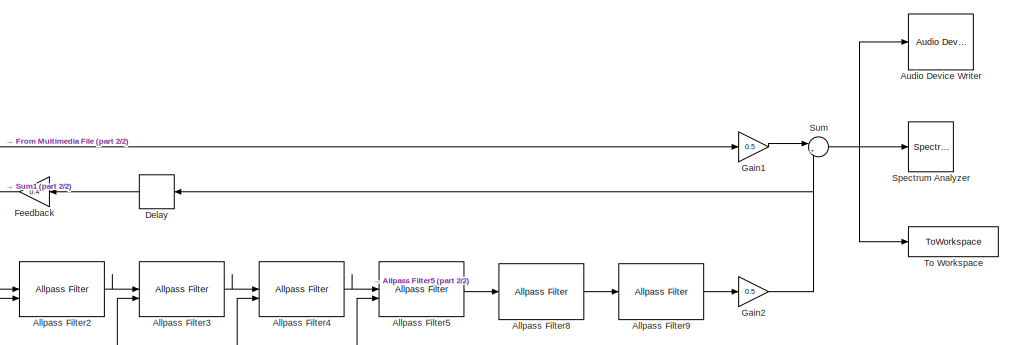
[diagram: root canvas - part 1/2, top right region]
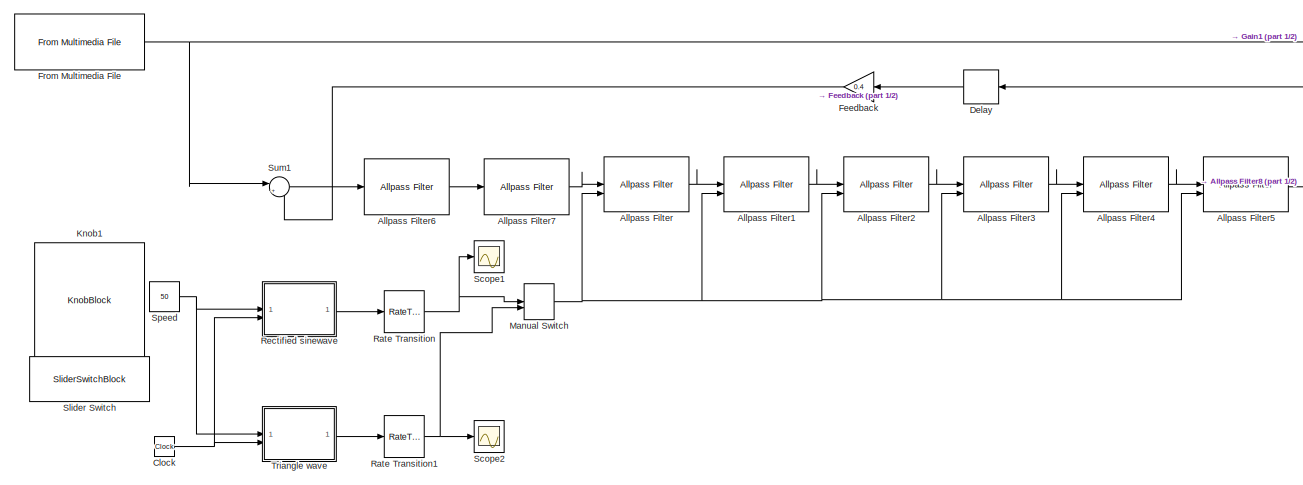
[diagram: root canvas - part 2/2, center side, full height]
MODEL slx_982d19d7233f
KIND model
CONFIG AbsTol = auto
CONFIG EnableMultiTasking = off
CONFIG FixedStep = auto
CONFIG MaxStep = auto
CONFIG MinStep = auto
CONFIG RelTol = 1e-3
CONFIG SampleTimeConstraint = Unconstrained
CONFIG SolverName = VariableStepAuto
CONFIG StartTime = 0.0
CONFIG StopTime = 10.0
BLOCK [Reference] Allpass Filter  REF=dsparch4/Allpass Filter
  SourceBlock = dsparch4/Allpass Filter
  SourceType = dsp.simulink.AllpassFilter
BLOCK [Reference] Allpass Filter1  REF=dsparch4/Allpass Filter
  SourceBlock = dsparch4/Allpass Filter
  SourceType = dsp.simulink.AllpassFilter
BLOCK [Reference] Allpass Filter2  REF=dsparch4/Allpass Filter
  SourceBlock = dsparch4/Allpass Filter
  SourceType = dsp.simulink.AllpassFilter
BLOCK [Reference] Allpass Filter3  REF=dsparch4/Allpass Filter
  SourceBlock = dsparch4/Allpass Filter
  SourceType = dsp.simulink.AllpassFilter
BLOCK [Reference] Allpass Filter4  REF=dsparch4/Allpass Filter
  SourceBlock = dsparch4/Allpass Filter
  SourceType = dsp.simulink.AllpassFilter
BLOCK [Reference] Allpass Filter5  REF=dsparch4/Allpass Filter
  SourceBlock = dsparch4/Allpass Filter
  SourceType = dsp.simulink.AllpassFilter
BLOCK [Reference] Allpass Filter6  REF=dsparch4/Allpass Filter
  SourceBlock = dsparch4/Allpass Filter
  SourceType = dsp.simulink.AllpassFilter
BLOCK [Reference] Allpass Filter7  REF=dsparch4/Allpass Filter
  SourceBlock = dsparch4/Allpass Filter
  SourceType = dsp.simulink.AllpassFilter
BLOCK [Reference] Allpass Filter8  REF=dsparch4/Allpass Filter
  SourceBlock = dsparch4/Allpass Filter
  SourceType = dsp.simulink.AllpassFilter
BLOCK [Reference] Allpass Filter9  REF=dsparch4/Allpass Filter
  SourceBlock = dsparch4/Allpass Filter
  SourceType = dsp.simulink.AllpassFilter
BLOCK [Reference] Audio Device Writer  REF=dspsnks4/Audio Device
Writer
  LibrarySourceBlock = audiosinks/Audio Device\nWriter
  SourceBlock = dspsnks4/Audio Device\nWriter
  SourceType = Audio Device Writer
BLOCK [Clock] Clock
BLOCK [Delay] Delay
  DelayLength = 1
  InitialCondition = 0
  InputPortMap = u0
BLOCK [Gain] Feedback
  Gain = 0.4
BLOCK [Reference] From Multimedia File  REF=dspvision/From Multimedia File
  LibrarySourceBlock = audiosources/From Multimedia File
  SourceBlock = dspvision/From Multimedia File
  SourceType = From Multimedia File
BLOCK [Gain] Gain1
  Gain = 0.5
BLOCK [Gain] Gain2
  Gain = 0.5
BLOCK [KnobBlock] Knob1
BLOCK [ManualSwitch] Manual Switch
BLOCK [RateTransition] Rate Transition
BLOCK [RateTransition] Rate Transition1
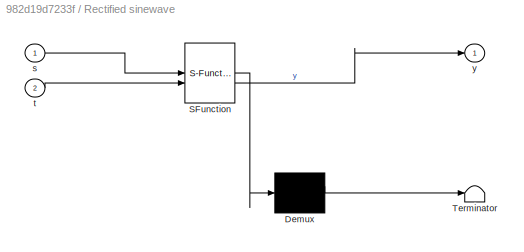
BLOCK [SubSystem] Rectified sinewave
  ErrorFcn = Stateflow.Translate.translate
  PermitHierarchicalResolution = ExplicitOnly
  SFBlockType = MATLAB Function
  TreatAsAtomicUnit = on
BLOCK [Demux] Rectified sinewave/ Demux 
  Outputs = 1
BLOCK [S-Function] Rectified sinewave/ SFunction 
  EnableBusSupport = on
  FunctionName = sf_sfun
  PortCounts = [2 2]
  SFcnIsStateOwnerBlock = off
  SFunctionDeploymentMode = off
  Tag = Stateflow S-Function 1
BLOCK [Terminator] Rectified sinewave/ Terminator 
BLOCK [Inport] Rectified sinewave/s
BLOCK [Inport] Rectified sinewave/t
  Port = 2
BLOCK [Outport] Rectified sinewave/y
  VectorParamsAs1DForOutWhenUnconnected = off
BLOCK [Scope] Scope1
  Floating = off
  NumInputPorts = 1
  ScopeSpecificationString = Simulink.scopes.TimeScopeBlockCfg('CurrentConfiguration', extmgr.ConfigurationSet(extmgr.Configuration('Core','General UI',true),extmgr.Configuration('Core','Source UI',true),extmgr.Configuration('Sources','WiredSimulink',true,'DataLoggingVariableName','ScopeData1'),extmgr.Configuration('Visuals','Time Domain',true,'SerializedDisplays',{struct('MinYLimReal','-0.6475','MaxYLimReal','0.92749','YLabe...<+1401ch>
BLOCK [Scope] Scope2
  Floating = off
  NumInputPorts = 1
  ScopeSpecificationString = Simulink.scopes.TimeScopeBlockCfg('CurrentConfiguration', extmgr.ConfigurationSet(extmgr.Configuration('Core','General UI',true),extmgr.Configuration('Core','Source UI',true),extmgr.Configuration('Sources','WiredSimulink',true,'DataLoggingVariableName','ScopeData2'),extmgr.Configuration('Visuals','Time Domain',true,'SerializedDisplays',{struct('MinYLimReal','-0.8961','MaxYLimReal','-0.33511','YLab...<+1404ch>
BLOCK [SliderSwitchBlock] Slider Switch
BLOCK [SpectrumAnalyzer] Spectrum Analyzer
  FrequencyScale = Log
  FrequencySpan = Start and stop frequencies
  GraphicalSettings = {"GraphicalSettings":{"Style":{"BackgroundColor":[0.12941176470588237,0.12941176470588237,0.12941176470588237],"AxesColor":[0.07058823529411765,0.07058823529411765,0.07058823529411765],"LabelsColor":[0.8509803921568627,0.8509803921568627,0.8509803921568627],"PreserveColors":false,"Visible":[true,true],"LineStyle":["-","-"],"LineColor":[[1,1,0.06666666666666667],[0.07450980392156863,0.6235294117647...<+1062ch>
  PlotAsTwoSidedSpectrum = off
  SampleRate = 44.1e3
  SampleRateSource = Property
  ScopeFrameLocation = window
  StartFrequency = 20
  StopFrequency = 20e3
  Visible = on
  WasSavedAsWebScope = on
  WindowPosition = [877.000000,775.000000,800.000000,445.000000,]
  YLimits = [-81.94518552,3.92887182]
BLOCK [Constant] Speed
  Value = 50
BLOCK [Sum] Sum
  Inputs = |++
BLOCK [Sum] Sum1
  Inputs = |++
BLOCK [ToWorkspace] To Workspace
  FixptAsFi = on
  MaxDataPoints = inf
  SampleTime = -1
  SaveFormat = Timeseries
  VariableName = y
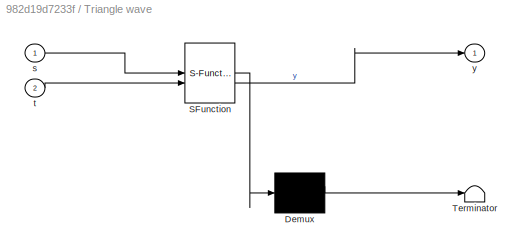
BLOCK [SubSystem] Triangle wave
  ErrorFcn = Stateflow.Translate.translate
  PermitHierarchicalResolution = ExplicitOnly
  SFBlockType = MATLAB Function
  TreatAsAtomicUnit = on
BLOCK [Demux] Triangle wave/ Demux 
  Outputs = 1
BLOCK [S-Function] Triangle wave/ SFunction 
  EnableBusSupport = on
  FunctionName = sf_sfun
  PortCounts = [2 2]
  SFcnIsStateOwnerBlock = off
  SFunctionDeploymentMode = off
  Tag = Stateflow S-Function 2
BLOCK [Terminator] Triangle wave/ Terminator 
BLOCK [Inport] Triangle wave/s
BLOCK [Inport] Triangle wave/t
  Port = 2
BLOCK [Outport] Triangle wave/y
  VectorParamsAs1DForOutWhenUnconnected = off
LINE Allpass Filter1:1 -> Allpass Filter2:1
LINE Allpass Filter2:1 -> Allpass Filter3:1
LINE Allpass Filter3:1 -> Allpass Filter4:1
LINE Allpass Filter4:1 -> Allpass Filter5:1
LINE Allpass Filter5:1 -> Allpass Filter8:1
LINE Allpass Filter6:1 -> Allpass Filter7:1
LINE Allpass Filter7:1 -> Allpass Filter:1
LINE Allpass Filter8:1 -> Allpass Filter9:1
LINE Allpass Filter9:1 -> Gain2:1
LINE Allpass Filter:1 -> Allpass Filter1:1
NET Clock:1 -> Rectified sinewave:2, Triangle wave:2
LINE Delay:1 -> Feedback:1
LINE Feedback:1 -> Sum1:2
NET From Multimedia File:1 -> Gain1:1, Sum1:1
LINE Gain1:1 -> Sum:1
NET Gain2:1 -> Delay:1, Sum:2
NET Manual Switch:1 -> Allpass Filter1:2, Allpass Filter2:2, Allpass Filter3:2, Allpass Filter4:2, Allpass Filter5:2, Allpass Filter:2
NET Rate Transition1:1 -> Manual Switch:2, Scope2:1
NET Rate Transition:1 -> Manual Switch:1, Scope1:1
LINE Rectified sinewave:1 -> Rate Transition:1
NET Speed:1 -> Rectified sinewave:1, Triangle wave:1
LINE Sum1:1 -> Allpass Filter6:1
NET Sum:1 -> Audio Device Writer:1, Spectrum Analyzer:1, To Workspace:1
LINE Triangle wave:1 -> Rate Transition1:1
note: NET lines group one-source signal fan-out (src -> all destinations, sorted); 1:1 wires keep LINE
CHART Rectified sinewave states=1 transitions=1
  STATE_LABEL 'eML_blk_kernel()'
  STATE_LABEL 'SCRIPT:\nfunction y = sine(s, t) % modulating wave gen\n    f = 0.069 * exp(0.04*s);\n    y = abs(sin(2*pi*f*t/2))*(1.26) - 0.49; % full wave rectified [-0.49, 0.77]\n'
CHART Triangle wave states=1 transitions=1
  STATE_LABEL 'eML_blk_kernel()'
  STATE_LABEL 'SCRIPT:\nfunction y = tria(s, t) % modulating wave gen\n    f = 0.069 * exp(0.04*s);\n    y = sawtooth(2*pi*f*t, 0.5)*(0.225) - 0.615; % triangle wave [-0.84, -0.39]\n'
CHART  states=0 transitions=0
CHART  states=0 transitions=0
